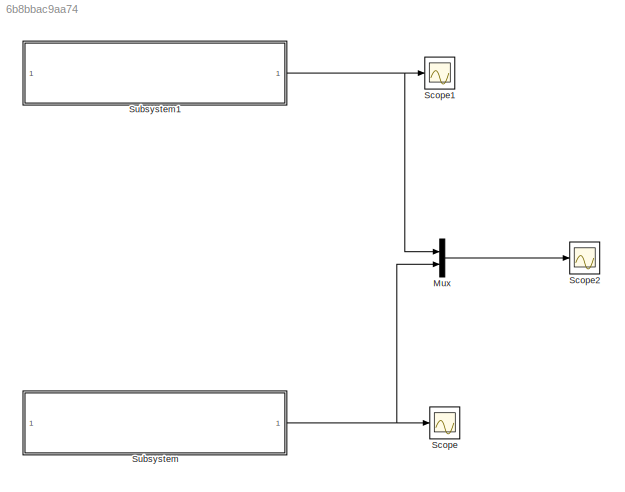
MODEL slx_6b8bbac9aa74
KIND model
CONFIG AbsTol = auto
CONFIG EnableMultiTasking = off
CONFIG FixedStep = auto
CONFIG MaxStep = auto
CONFIG MinStep = auto
CONFIG RelTol = 1e-3
CONFIG SampleTimeConstraint = Unconstrained
CONFIG SolverName = VariableStepAuto
CONFIG StartTime = 0.0
CONFIG StopTime = 0.003
BLOCK [Mux] Mux
  DisplayOption = bar
  Inputs = 2
BLOCK [Scope] Scope
  Floating = off
  NumInputPorts = 1
  ScopeSpecificationString = Simulink.scopes.TimeScopeBlockCfg('CurrentConfiguration', extmgr.ConfigurationSet(extmgr.Configuration('Core','General UI',true),extmgr.Configuration('Core','Source UI',true),extmgr.Configuration('Sources','WiredSimulink',true),extmgr.Configuration('Visuals','Time Domain',true,'SerializedDisplays',{struct('MinYLimReal','-0.45116','MaxYLimReal','4.06043','YLabelReal','','MinYLimMag','0.00000','MaxY...<+1358ch>
BLOCK [Scope] Scope1
  Floating = off
  NumInputPorts = 1
  ScopeSpecificationString = Simulink.scopes.TimeScopeBlockCfg('CurrentConfiguration', extmgr.ConfigurationSet(extmgr.Configuration('Core','General UI',true),extmgr.Configuration('Core','Source UI',true),extmgr.Configuration('Sources','WiredSimulink',true,'DataLoggingVariableName','ScopeData1'),extmgr.Configuration('Visuals','Time Domain',true,'SerializedDisplays',{struct('MinYLimReal','-0.45116','MaxYLimReal','4.06043','YLab...<+1399ch>
BLOCK [Scope] Scope2
  Floating = off
  NumInputPorts = 1
  ScopeSpecificationString = Simulink.scopes.TimeScopeBlockCfg('CurrentConfiguration', extmgr.ConfigurationSet(extmgr.Configuration('Core','General UI',true),extmgr.Configuration('Core','Source UI',true),extmgr.Configuration('Sources','WiredSimulink',true,'DataLoggingVariableName','ScopeData2'),extmgr.Configuration('Visuals','Time Domain',true,'SerializedDisplays',{struct('MinYLimReal','-0.45116','MaxYLimReal','4.06043','YLab...<+1411ch>
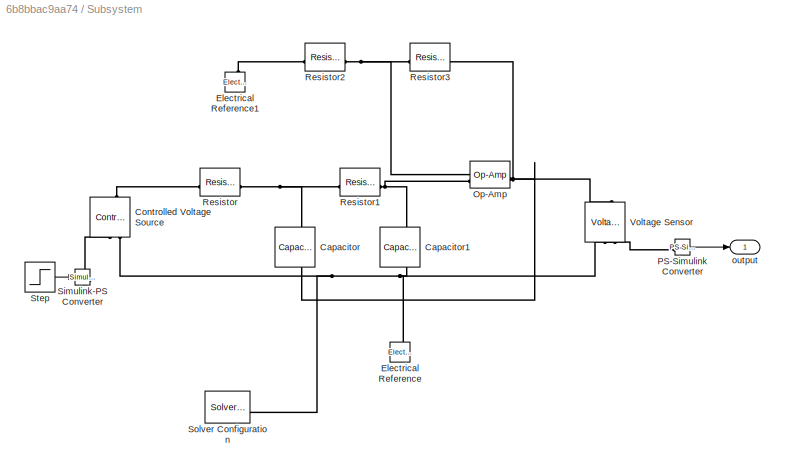
BLOCK [SubSystem] Subsystem
BLOCK [Reference] Subsystem/Capacitor  REF=fl_lib/Electrical/Electrical Elements/Capacitor
  NameLocation = left
  SourceBlock = fl_lib/Electrical/Electrical Elements/Capacitor
  SourceType = Capacitor
BLOCK [Reference] Subsystem/Capacitor1  REF=fl_lib/Electrical/Electrical Elements/Capacitor
  NameLocation = left
  SourceBlock = fl_lib/Electrical/Electrical Elements/Capacitor
  SourceType = Capacitor
BLOCK [Reference] Subsystem/Controlled Voltage Source  REF=fl_lib/Electrical/Electrical Sources/Controlled Voltage
Source
  NameLocation = right
  SourceBlock = fl_lib/Electrical/Electrical Sources/Controlled Voltage\nSource
  SourceType = Controlled Voltage\nSource
BLOCK [Reference] Subsystem/Electrical Reference  REF=fl_lib/Electrical/Electrical Elements/Electrical Reference
  NameLocation = right
  SourceBlock = fl_lib/Electrical/Electrical Elements/Electrical Reference
  SourceType = Electrical Reference
BLOCK [Reference] Subsystem/Electrical Reference1  REF=fl_lib/Electrical/Electrical Elements/Electrical Reference
  NameLocation = right
  SourceBlock = fl_lib/Electrical/Electrical Elements/Electrical Reference
  SourceType = Electrical Reference
BLOCK [Reference] Subsystem/Op-Amp  REF=fl_lib/Electrical/Electrical Elements/Op-Amp
  SourceBlock = fl_lib/Electrical/Electrical Elements/Op-Amp
  SourceType = Op-Amp
BLOCK [Reference] Subsystem/PS-Simulink Converter  REF=nesl_utility/PS-Simulink
Converter
  SourceBlock = nesl_utility/PS-Simulink\nConverter
  SourceType = PS-Simulink\nConverter
BLOCK [Reference] Subsystem/Resistor  REF=fl_lib/Electrical/Electrical Elements/Resistor
  SourceBlock = fl_lib/Electrical/Electrical Elements/Resistor
  SourceType = Resistor
BLOCK [Reference] Subsystem/Resistor1  REF=fl_lib/Electrical/Electrical Elements/Resistor
  SourceBlock = fl_lib/Electrical/Electrical Elements/Resistor
  SourceType = Resistor
BLOCK [Reference] Subsystem/Resistor2  REF=fl_lib/Electrical/Electrical Elements/Resistor
  SourceBlock = fl_lib/Electrical/Electrical Elements/Resistor
  SourceType = Resistor
BLOCK [Reference] Subsystem/Resistor3  REF=fl_lib/Electrical/Electrical Elements/Resistor
  SourceBlock = fl_lib/Electrical/Electrical Elements/Resistor
  SourceType = Resistor
BLOCK [Reference] Subsystem/Simulink-PS Converter  REF=nesl_utility/Simulink-PS
Converter
  SourceBlock = nesl_utility/Simulink-PS\nConverter
  SourceType = Simulink-PS\nConverter
BLOCK [Reference] Subsystem/Solver Configuration  REF=nesl_utility/Solver
Configuration
  SourceBlock = nesl_utility/Solver\nConfiguration
  SourceType = Solver\nConfiguration
BLOCK [Step] Subsystem/Step
  SampleTime = 0
  Time = 0
BLOCK [Reference] Subsystem/Voltage Sensor  REF=fl_lib/Electrical/Electrical Sensors/Voltage Sensor
  NameLocation = right
  SourceBlock = fl_lib/Electrical/Electrical Sensors/Voltage Sensor
  SourceType = Voltage Sensor
BLOCK [Outport] Subsystem/output
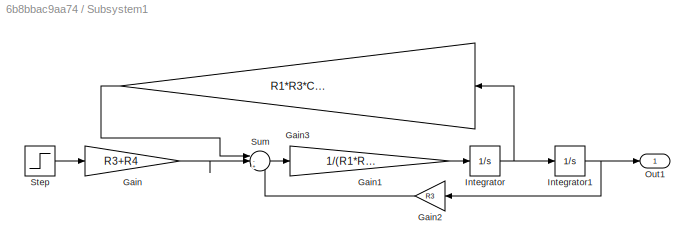
BLOCK [SubSystem] Subsystem1
BLOCK [Gain] Subsystem1/Gain
  Gain = R3+R4
BLOCK [Gain] Subsystem1/Gain1
  Gain = 1/(R1*R2*C1*C2*R3)
BLOCK [Gain] Subsystem1/Gain2
  Gain = R3
  NameLocation = top
BLOCK [Gain] Subsystem1/Gain3
  Gain = R1*R3*C1+R2*R3*C2+R1*R3*C2-R3*R1*C1-R4*R1*C1
  NameLocation = top
BLOCK [Integrator] Subsystem1/Integrator
BLOCK [Integrator] Subsystem1/Integrator1
BLOCK [Outport] Subsystem1/Out1
BLOCK [Step] Subsystem1/Step
  SampleTime = 0
  Time = 0
BLOCK [Sum] Subsystem1/Sum
  Inputs = |-+-
LINE Mux:1 -> Scope2:1
LINE Subsystem/PS-Simulink Converter:1 -> Subsystem/output:1
LINE Subsystem/Step:1 -> Subsystem/Simulink-PS Converter:1
LINE Subsystem1/Gain1:1 -> Subsystem1/Integrator:1
LINE Subsystem1/Gain2:1 -> Subsystem1/Sum:3
LINE Subsystem1/Gain3:1 -> Subsystem1/Sum:1
LINE Subsystem1/Gain:1 -> Subsystem1/Sum:2
NET Subsystem1/Integrator1:1 -> Subsystem1/Gain2:1, Subsystem1/Out1:1
NET Subsystem1/Integrator:1 -> Subsystem1/Gain3:1, Subsystem1/Integrator1:1
LINE Subsystem1/Step:1 -> Subsystem1/Gain:1
LINE Subsystem1/Sum:1 -> Subsystem1/Gain1:1
NET Subsystem1:1 -> Mux:1, Scope1:1
NET Subsystem:1 -> Mux:2, Scope:1
PNET net1: Subsystem/Capacitor1:LConn1 -- Subsystem/Op-Amp:LConn2 -- Subsystem/Resistor1:RConn1
PNET net2: Subsystem/Capacitor1:RConn1 -- Subsystem/Controlled Voltage Source:RConn2 -- Subsystem/Electrical Reference:LConn1 -- Subsystem/Solver Configuration:RConn1 -- Subsystem/Voltage Sensor:RConn2
PNET net3: Subsystem/Capacitor:LConn1 -- Subsystem/Resistor1:LConn1 -- Subsystem/Resistor:RConn1
PNET net4: Subsystem/Capacitor:RConn1 -- Subsystem/Op-Amp:RConn1 -- Subsystem/Resistor3:RConn1 -- Subsystem/Voltage Sensor:LConn1
PLINE Subsystem/Controlled Voltage Source:LConn1 -- Subsystem/Resistor:LConn1
PLINE Subsystem/Controlled Voltage Source:RConn1 -- Subsystem/Simulink-PS Converter:RConn1
PLINE Subsystem/Electrical Reference1:LConn1 -- Subsystem/Resistor2:LConn1
PNET net5: Subsystem/Op-Amp:LConn1 -- Subsystem/Resistor2:RConn1 -- Subsystem/Resistor3:LConn1
PLINE Subsystem/PS-Simulink Converter:LConn1 -- Subsystem/Voltage Sensor:RConn1
note: NET lines group one-source signal fan-out (src -> all destinations, sorted); 1:1 wires keep LINE; PNET lines group multi-terminal physical nets as a canonical sorted terminal list (undirected conserving connections); 2-terminal nets keep the pairwise PLINE form
